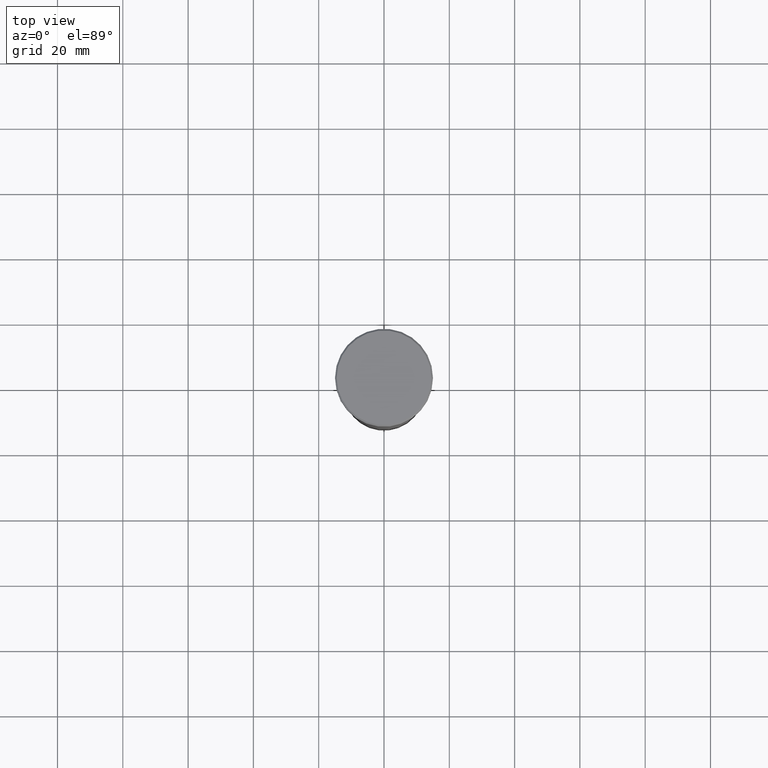
[diagram: clean part render]
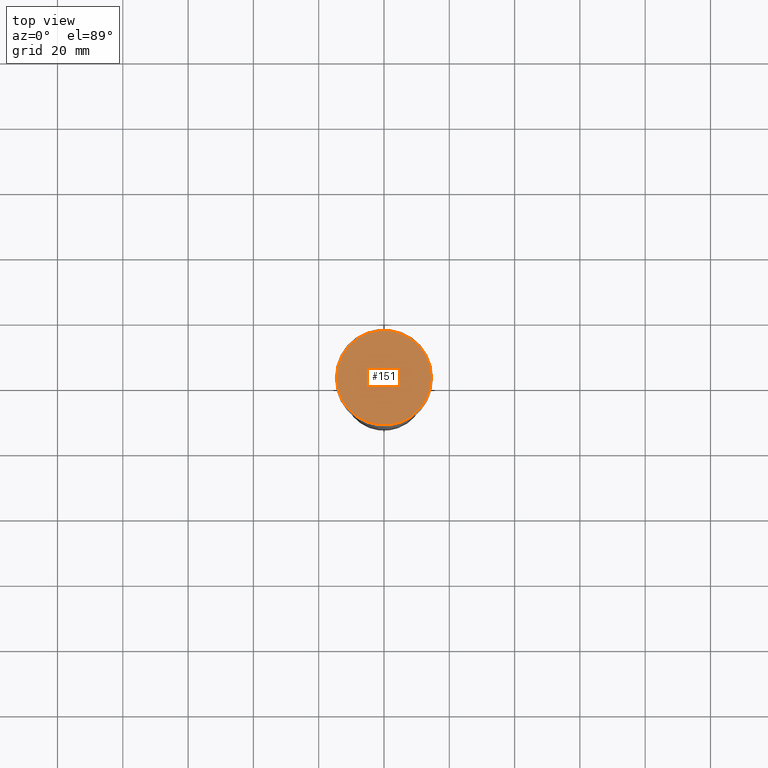
[diagram: same view with one face highlighted and labeled with its STEP entity id]
A machine part, top view. The second image highlights one B-rep face of the part: STEP entity #151.
In plain terms, the highlighted planar face has unit normal (0, -0, 1).
Its self-contained STEP definition (entity closure, byte-faithful):
#30 = DIRECTION ( 'NONE',  ( 1.000000000000000000, 0.000000000000000000, 0.000000000000000000 ) ) ;
#99 = AXIS2_PLACEMENT_3D ( 'NONE', #504, #459, #313 ) ;
#106 = EDGE_CURVE ( 'NONE', #446, #431, #455, .T. ) ;
#127 = EDGE_LOOP ( 'NONE', ( #314, #595 ) ) ;
#151 = ADVANCED_FACE ( 'NONE', ( #481 ), #207, .T. ) ;
#188 = AXIS2_PLACEMENT_3D ( 'NONE', #416, #338, #30 ) ;
#207 = PLANE ( 'NONE',  #497 ) ;
#237 = CIRCLE ( 'NONE', #188, 14.50000000000001066 ) ;
#313 = DIRECTION ( 'NONE',  ( 1.000000000000000000, 0.000000000000000000, 0.000000000000000000 ) ) ;
#314 = ORIENTED_EDGE ( 'NONE', *, *, #106, .T. ) ;
#338 = DIRECTION ( 'NONE',  ( -0.000000000000000000, -0.000000000000000000, 1.000000000000000000 ) ) ;
#347 = DIRECTION ( 'NONE',  ( 1.000000000000000000, 0.000000000000000000, 0.000000000000000000 ) ) ;
#416 = CARTESIAN_POINT ( 'NONE',  ( 0.000000000000000000, 0.000000000000000000, 0.000000000000000000 ) ) ;
#431 = VERTEX_POINT ( 'NONE', #452 ) ;
#446 = VERTEX_POINT ( 'NONE', #588 ) ;
#452 = CARTESIAN_POINT ( 'NONE',  ( 14.50000000000001066, 1.806354028742346591E-15, 0.000000000000000000 ) ) ;
#455 = CIRCLE ( 'NONE', #99, 14.50000000000001066 ) ;
#459 = DIRECTION ( 'NONE',  ( -0.000000000000000000, -0.000000000000000000, 1.000000000000000000 ) ) ;
#463 = EDGE_CURVE ( 'NONE', #431, #446, #237, .T. ) ;
#481 = FACE_OUTER_BOUND ( 'NONE', #127, .T. ) ;
#497 = AXIS2_PLACEMENT_3D ( 'NONE', #579, #584, #347 ) ;
#504 = CARTESIAN_POINT ( 'NONE',  ( 0.000000000000000000, 0.000000000000000000, 0.000000000000000000 ) ) ;
#579 = CARTESIAN_POINT ( 'NONE',  ( 0.000000000000000000, 0.000000000000000000, 0.000000000000000000 ) ) ;
#584 = DIRECTION ( 'NONE',  ( 0.000000000000000000, -0.000000000000000000, 1.000000000000000000 ) ) ;
#588 = CARTESIAN_POINT ( 'NONE',  ( -14.50000000000001066, 0.000000000000000000, 0.000000000000000000 ) ) ;
#595 = ORIENTED_EDGE ( 'NONE', *, *, #463, .T. ) ;